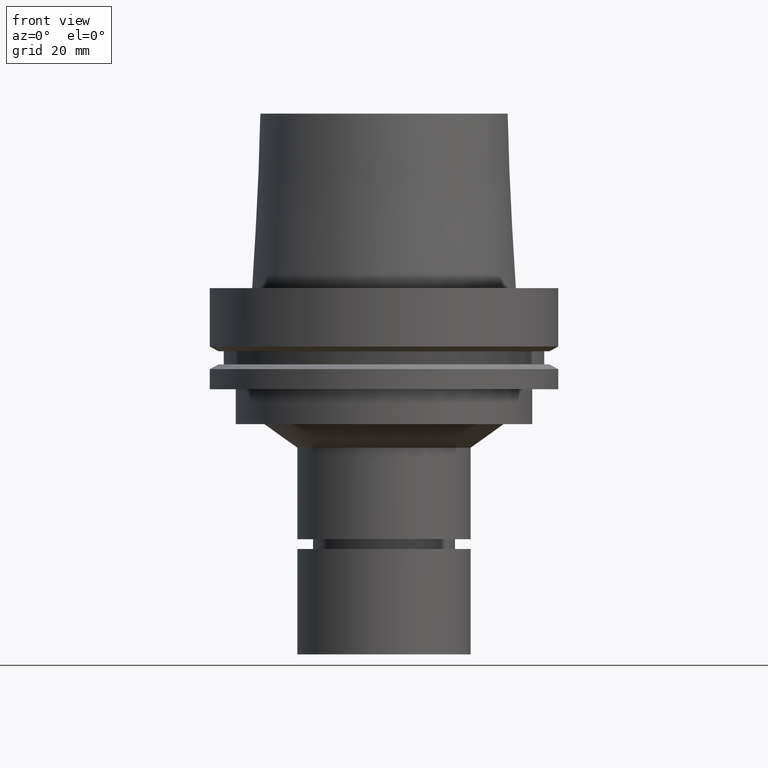
[diagram: clean part render]
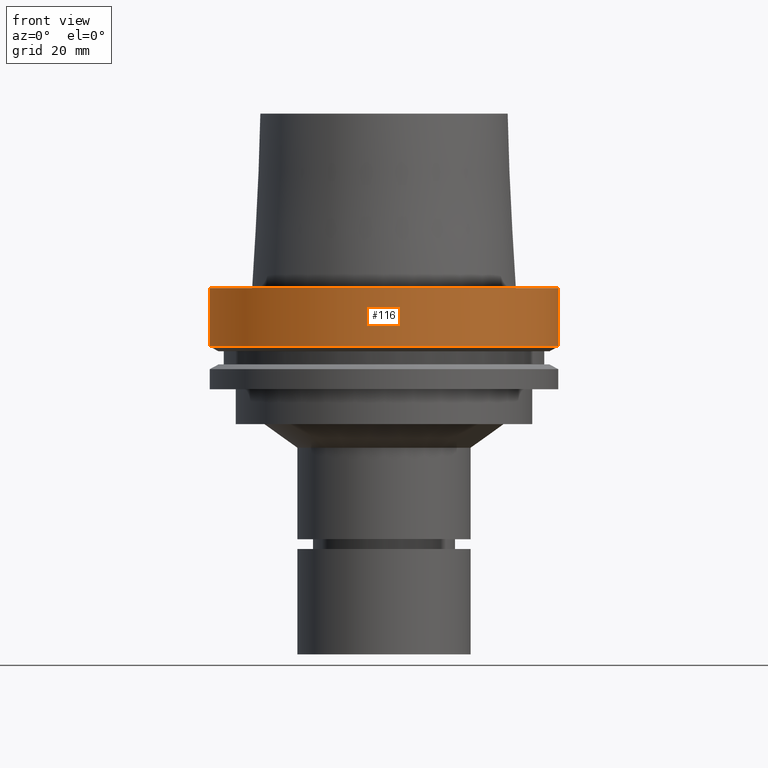
[diagram: same view with one face highlighted and labeled with its STEP entity id]
A machine part, front view. The second image highlights one B-rep face of the part: STEP entity #116.
In plain terms, the highlighted cylindrical surface (bore or boss wall) has radius 50 mm, axis along (0, 0, -1).
Its self-contained STEP definition (entity closure, byte-faithful):
#116=ADVANCED_FACE('Unnamed[1]',(#273,#274),#275,.T.);
#171=EDGE_CURVE('Unnamed[1]',#361,#361,#362,.T.);
#185=EDGE_CURVE('Unnamed[1]',#383,#383,#384,.T.);
#273=FACE_BOUND('',#484,.T.);
#274=FACE_BOUND('',#485,.T.);
#275=CYLINDRICAL_SURFACE('',#486,50.0);
#361=VERTEX_POINT('',#594);
#362=CIRCLE('',#595,50.0);
#383=VERTEX_POINT('',#622);
#384=CIRCLE('',#623,50.0);
#484=EDGE_LOOP('',(#708));
#485=EDGE_LOOP('',(#709));
#486=AXIS2_PLACEMENT_3D('',#710,#711,#712);
#594=CARTESIAN_POINT('',(1.0257889421431E-015,50.0,-16.75240474));
#595=AXIS2_PLACEMENT_3D('',#808,#809,#810);
#622=CARTESIAN_POINT('',(-1.81547968506605E-031,50.0,-9.76766004263236E-016));
#623=AXIS2_PLACEMENT_3D('',#832,#833,#834);
#708=ORIENTED_EDGE('',*,*,#171,.F.);
#709=ORIENTED_EDGE('',*,*,#185,.T.);
#710=CARTESIAN_POINT('',(5.12894471071548E-016,1.0257889421431E-015,-8.37620236999999));
#711=DIRECTION('',(6.12323399573677E-017,1.22464679914735E-016,-1.0));
#712=DIRECTION('',(-1.23259516440783E-032,1.0,1.22464679914735E-016));
#808=CARTESIAN_POINT('',(1.0257889421431E-015,2.05157788428619E-015,-16.75240474));
#809=DIRECTION('',(6.12323399573677E-017,1.22464679914735E-016,-1.0));
#810=DIRECTION('',(-1.23259516440783E-032,1.0,1.22464679914735E-016));
#832=CARTESIAN_POINT('',(0.0,0.0,0.0));
#833=DIRECTION('',(6.12323399573677E-017,1.22464679914735E-016,-1.0));
#834=DIRECTION('',(-1.23259516440783E-032,1.0,1.22464679914735E-016));